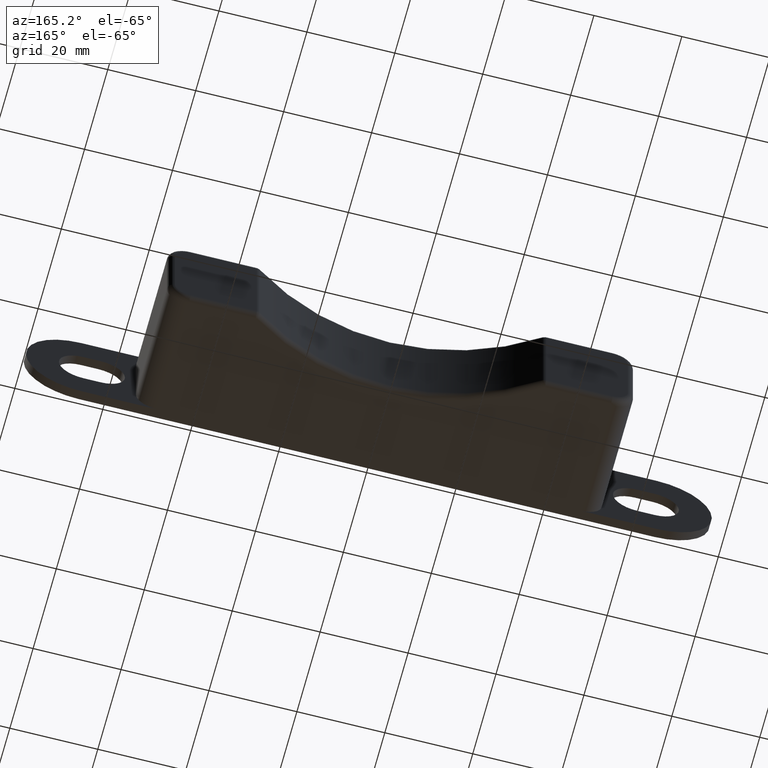
[diagram: clean part render]
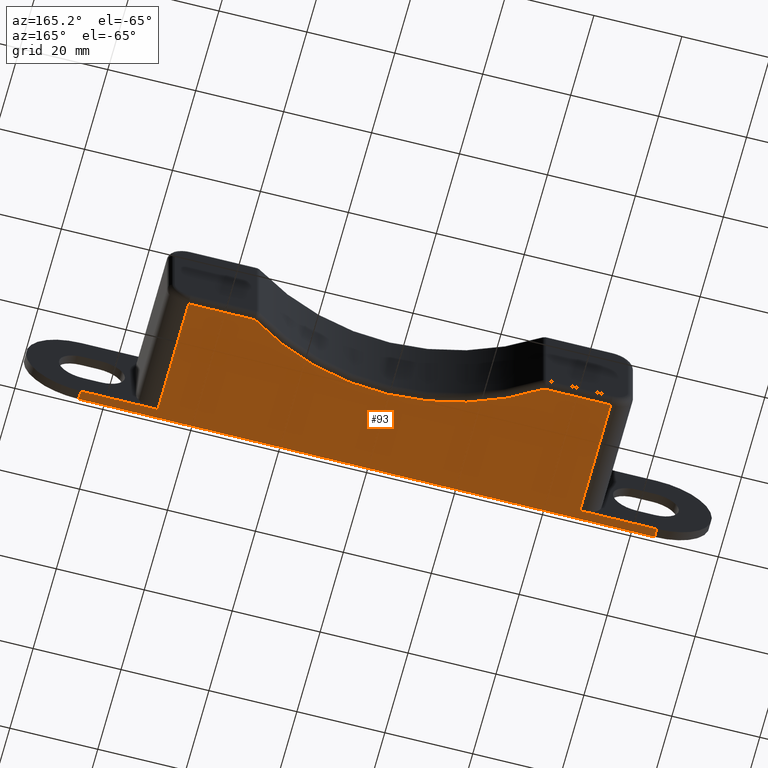
[diagram: same view with one face highlighted and labeled with its STEP entity id]
A machine part, auxiliary view. The second image highlights one B-rep face of the part: STEP entity #93.
In plain terms, the highlighted planar face has unit normal (0, 0, -1).
Its self-contained STEP definition (entity closure, byte-faithful):
#93 = ADVANCED_FACE( '', ( #808 ), #809, .T. );
#808 = FACE_OUTER_BOUND( '', #2116, .T. );
#809 = PLANE( '', #2117 );
#2116 = EDGE_LOOP( '', ( #3920, #3921, #3922, #3923, #3924, #3925, #3926, #3927, #3928, #3929 ) );
#2117 = AXIS2_PLACEMENT_3D( '', #3930, #3931, #3932 );
#3920 = ORIENTED_EDGE( '', *, *, #8770, .T. );
#3921 = ORIENTED_EDGE( '', *, *, #8755, .T. );
#3922 = ORIENTED_EDGE( '', *, *, #8771, .T. );
#3923 = ORIENTED_EDGE( '', *, *, #8772, .T. );
#3924 = ORIENTED_EDGE( '', *, *, #8773, .T. );
#3925 = ORIENTED_EDGE( '', *, *, #8774, .F. );
#3926 = ORIENTED_EDGE( '', *, *, #8775, .T. );
#3927 = ORIENTED_EDGE( '', *, *, #8504, .F. );
#3928 = ORIENTED_EDGE( '', *, *, #8769, .T. );
#3929 = ORIENTED_EDGE( '', *, *, #8776, .F. );
#3930 = CARTESIAN_POINT( '', ( 0.000000000000000, 77.6499999999999, -12.5000000000000 ) );
#3931 = DIRECTION( '', ( 0.000000000000000, 0.000000000000000, -1.00000000000000 ) );
#3932 = DIRECTION( '', ( 0.000000000000000, 1.00000000000000, 0.000000000000000 ) );
#8504 = EDGE_CURVE( '', #10322, #10324, #10325, .T. );
#8755 = EDGE_CURVE( '', #10810, #10815, #10817, .F. );
#8769 = EDGE_CURVE( '', #10322, #10838, #10840, .F. );
#8770 = EDGE_CURVE( '', #10841, #10810, #10842, .F. );
#8771 = EDGE_CURVE( '', #10815, #10843, #10844, .F. );
#8772 = EDGE_CURVE( '', #10843, #10845, #10846, .F. );
#8773 = EDGE_CURVE( '', #10845, #10847, #10848, .F. );
#8774 = EDGE_CURVE( '', #10849, #10847, #10850, .T. );
#8775 = EDGE_CURVE( '', #10849, #10324, #10851, .F. );
#8776 = EDGE_CURVE( '', #10841, #10838, #10852, .T. );
#10322 = VERTEX_POINT( '', #13165 );
#10324 = VERTEX_POINT( '', #13167 );
#10325 = LINE( '', #13168, #13169 );
#10810 = VERTEX_POINT( '', #13886 );
#10815 = VERTEX_POINT( '', #13891 );
#10817 = LINE( '', #13893, #13894 );
#10838 = VERTEX_POINT( '', #13919 );
#10840 = LINE( '', #13921, #13922 );
#10841 = VERTEX_POINT( '', #13923 );
#10842 = LINE( '', #13924, #13925 );
#10843 = VERTEX_POINT( '', #13926 );
#10844 = CIRCLE( '', #13927, 59.1500000000000 );
#10845 = VERTEX_POINT( '', #13928 );
#10846 = LINE( '', #13929, #13930 );
#10847 = VERTEX_POINT( '', #13931 );
#10848 = LINE( '', #13932, #13933 );
#10849 = VERTEX_POINT( '', #13934 );
#10850 = LINE( '', #13935, #13936 );
#10851 = LINE( '', #13937, #13938 );
#10852 = LINE( '', #13939, #13940 );
#13165 = CARTESIAN_POINT( '', ( -65.5000000000000, 0.000000000000000, -12.5000000000000 ) );
#13167 = CARTESIAN_POINT( '', ( 65.5000000000001, 0.000000000000000, -12.5000000000000 ) );
#13168 = CARTESIAN_POINT( '', ( -78.0000000000000, 0.000000000000000, -12.5000000000000 ) );
#13169 = VECTOR( '', #16524, 1000.00000000000 );
#13886 = CARTESIAN_POINT( '', ( -48.0000000000000, 28.5000000000000, -12.5000000000000 ) );
#13891 = CARTESIAN_POINT( '', ( -32.9089653438087, 28.5000000000000, -12.5000000000000 ) );
#13893 = CARTESIAN_POINT( '', ( 0.000000000000000, 28.5000000000000, -12.5000000000000 ) );
#13894 = VECTOR( '', #16811, 1000.00000000000 );
#13919 = CARTESIAN_POINT( '', ( -65.5000000000000, 2.00000000000000, -12.5000000000000 ) );
#13921 = CARTESIAN_POINT( '', ( -65.5000000000000, 77.6499999999999, -12.5000000000000 ) );
#13922 = VECTOR( '', #16843, 1000.00000000000 );
#13923 = CARTESIAN_POINT( '', ( -48.0000000000000, 2.00000000000000, -12.5000000000000 ) );
#13924 = CARTESIAN_POINT( '', ( -48.0000000000000, 77.6499999999999, -12.5000000000000 ) );
#13925 = VECTOR( '', #16844, 1000.00000000000 );
#13926 = CARTESIAN_POINT( '', ( 32.9089653438087, 28.5000000000000, -12.5000000000000 ) );
#13927 = AXIS2_PLACEMENT_3D( '', #16845, #16846, #16847 );
#13928 = CARTESIAN_POINT( '', ( 48.0000000000000, 28.5000000000000, -12.5000000000000 ) );
#13929 = CARTESIAN_POINT( '', ( 0.000000000000000, 28.5000000000000, -12.5000000000000 ) );
#13930 = VECTOR( '', #16848, 1000.00000000000 );
#13931 = CARTESIAN_POINT( '', ( 48.0000000000000, 2.00000000000000, -12.5000000000000 ) );
#13932 = CARTESIAN_POINT( '', ( 48.0000000000000, 77.6499999999999, -12.5000000000000 ) );
#13933 = VECTOR( '', #16849, 1000.00000000000 );
#13934 = CARTESIAN_POINT( '', ( 65.5000000000000, 2.00000000000000, -12.5000000000000 ) );
#13935 = CARTESIAN_POINT( '', ( 78.0000000000000, 2.00000000000000, -12.5000000000000 ) );
#13936 = VECTOR( '', #16850, 1000.00000000000 );
#13937 = CARTESIAN_POINT( '', ( 65.5000000000000, 77.6499999999999, -12.5000000000000 ) );
#13938 = VECTOR( '', #16851, 1000.00000000000 );
#13939 = CARTESIAN_POINT( '', ( -53.0000000000000, 2.00000000000000, -12.5000000000000 ) );
#13940 = VECTOR( '', #16852, 1000.00000000000 );
#16524 = DIRECTION( '', ( 1.00000000000000, 0.000000000000000, 0.000000000000000 ) );
#16811 = DIRECTION( '', ( -1.00000000000000, 0.000000000000000, 0.000000000000000 ) );
#16843 = DIRECTION( '', ( -6.93889390390723E-017, -1.00000000000000, 0.000000000000000 ) );
#16844 = DIRECTION( '', ( -6.93889390390723E-017, -1.00000000000000, 0.000000000000000 ) );
#16845 = CARTESIAN_POINT( '', ( 0.000000000000000, 77.6499999999999, -12.5000000000000 ) );
#16846 = DIRECTION( '', ( 0.000000000000000, 0.000000000000000, -1.00000000000000 ) );
#16847 = DIRECTION( '', ( -1.00000000000000, 0.000000000000000, 0.000000000000000 ) );
#16848 = DIRECTION( '', ( -1.00000000000000, 0.000000000000000, 0.000000000000000 ) );
#16849 = DIRECTION( '', ( 6.93889390390723E-017, 1.00000000000000, 0.000000000000000 ) );
#16850 = DIRECTION( '', ( -1.00000000000000, 0.000000000000000, 0.000000000000000 ) );
#16851 = DIRECTION( '', ( 6.93889390390723E-017, 1.00000000000000, 0.000000000000000 ) );
#16852 = DIRECTION( '', ( -1.00000000000000, 0.000000000000000, 0.000000000000000 ) );